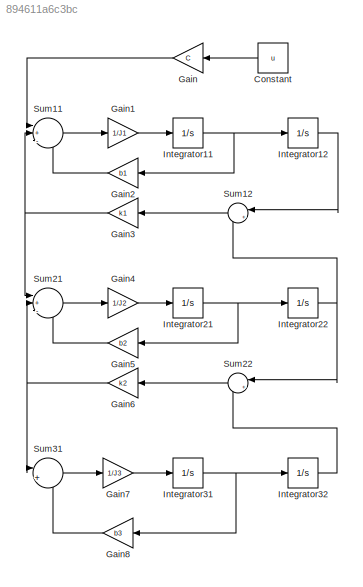
MODEL slx_894611a6c3bc
KIND model
CONFIG AbsTol = auto
CONFIG EnableMultiTasking = off
CONFIG FixedStep = auto
CONFIG MaxStep = auto
CONFIG MinStep = auto
CONFIG RelTol = 1e-3
CONFIG SampleTimeConstraint = Unconstrained
CONFIG SolverName = VariableStepAuto
CONFIG StartTime = 0.0
CONFIG StopTime = 10.0
BLOCK [Constant] Constant
  Value = u
BLOCK [Gain] Gain
  Gain = C
BLOCK [Gain] Gain1
  Gain = 1/J1
BLOCK [Gain] Gain2
  Gain = b1
BLOCK [Gain] Gain3
  Gain = k1
BLOCK [Gain] Gain4
  Gain = 1/J2
BLOCK [Gain] Gain5
  Gain = b2
BLOCK [Gain] Gain6
  Gain = k2
BLOCK [Gain] Gain7
  Gain = 1/J3
BLOCK [Gain] Gain8
  Gain = b3
BLOCK [Integrator] Integrator11
BLOCK [Integrator] Integrator12
BLOCK [Integrator] Integrator21
BLOCK [Integrator] Integrator22
BLOCK [Integrator] Integrator31
BLOCK [Integrator] Integrator32
BLOCK [Sum] Sum11
  Inputs = |+--
BLOCK [Sum] Sum12
  Inputs = |+-
BLOCK [Sum] Sum21
  Inputs = |+--
BLOCK [Sum] Sum22
  Inputs = |+-
BLOCK [Sum] Sum31
  Inputs = |+-
LINE Constant:1 -> Gain:1
LINE Gain1:1 -> Integrator11:1
LINE Gain2:1 -> Sum11:3
NET Gain3:1 -> Sum11:2, Sum21:1
LINE Gain4:1 -> Integrator21:1
LINE Gain5:1 -> Sum21:3
NET Gain6:1 -> Sum21:2, Sum31:1
LINE Gain7:1 -> Integrator31:1
LINE Gain8:1 -> Sum31:2
LINE Gain:1 -> Sum11:1
NET Integrator11:1 -> Gain2:1, Integrator12:1
LINE Integrator12:1 -> Sum12:1
NET Integrator21:1 -> Gain5:1, Integrator22:1
NET Integrator22:1 -> Sum12:2, Sum22:1
NET Integrator31:1 -> Gain8:1, Integrator32:1
LINE Integrator32:1 -> Sum22:2
LINE Sum11:1 -> Gain1:1
LINE Sum12:1 -> Gain3:1
LINE Sum21:1 -> Gain4:1
LINE Sum22:1 -> Gain6:1
LINE Sum31:1 -> Gain7:1
note: NET lines group one-source signal fan-out (src -> all destinations, sorted); 1:1 wires keep LINE
